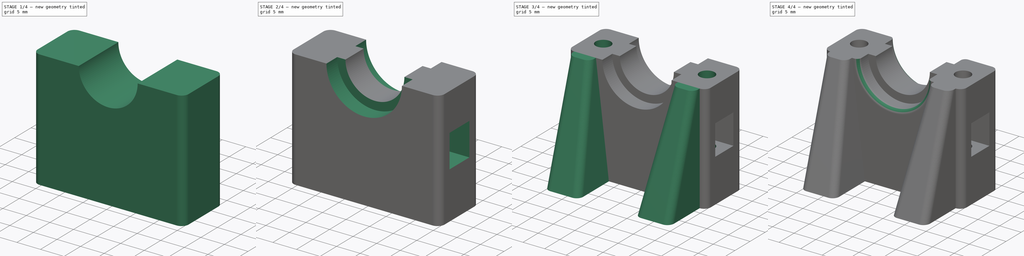
[diagram: build sequence overview — one tinted view per stage of 4, left to right]
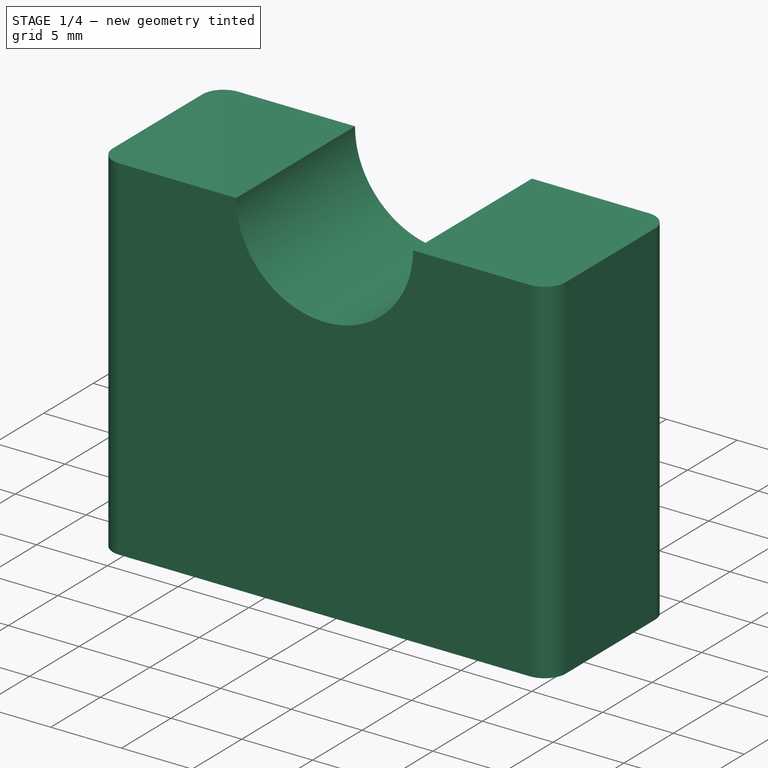
[diagram: stage 1 of 4 — iso view after this stage's code; geometry added in this stage tinted green]
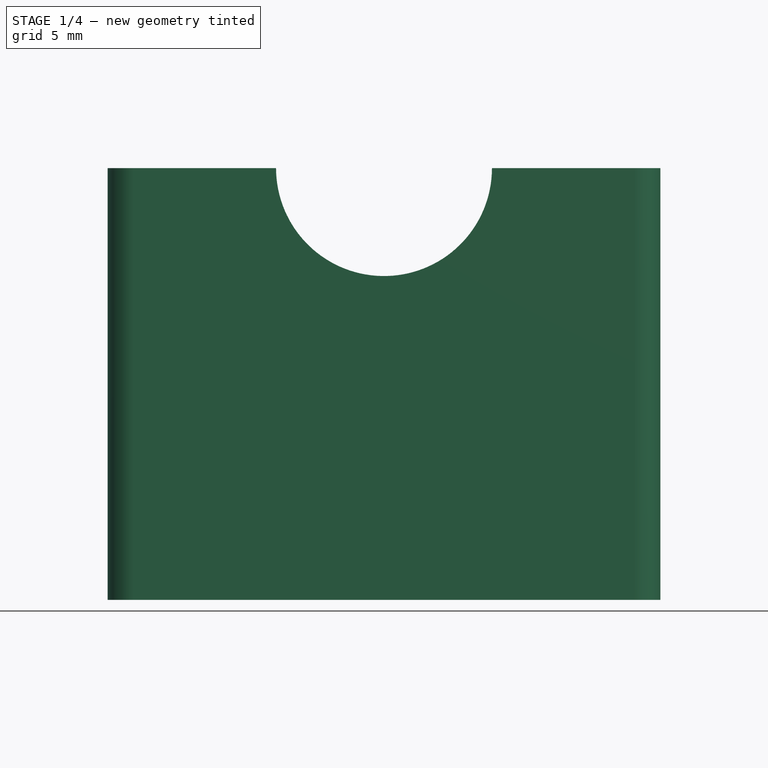
[diagram: stage 1 of 4 — front view after this stage's code; geometry added in this stage tinted green]
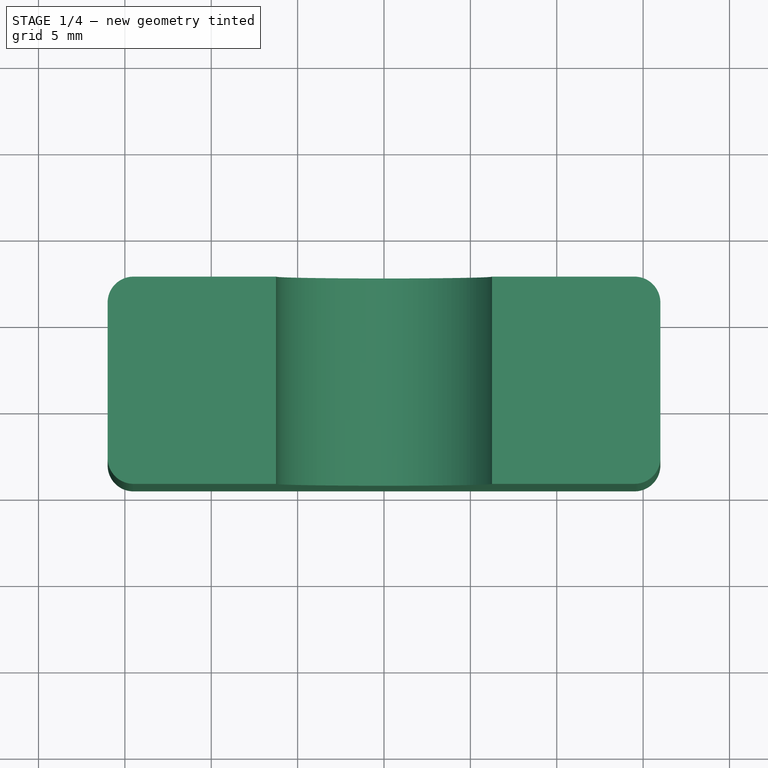
[diagram: stage 1 of 4 — top view after this stage's code; geometry added in this stage tinted green]
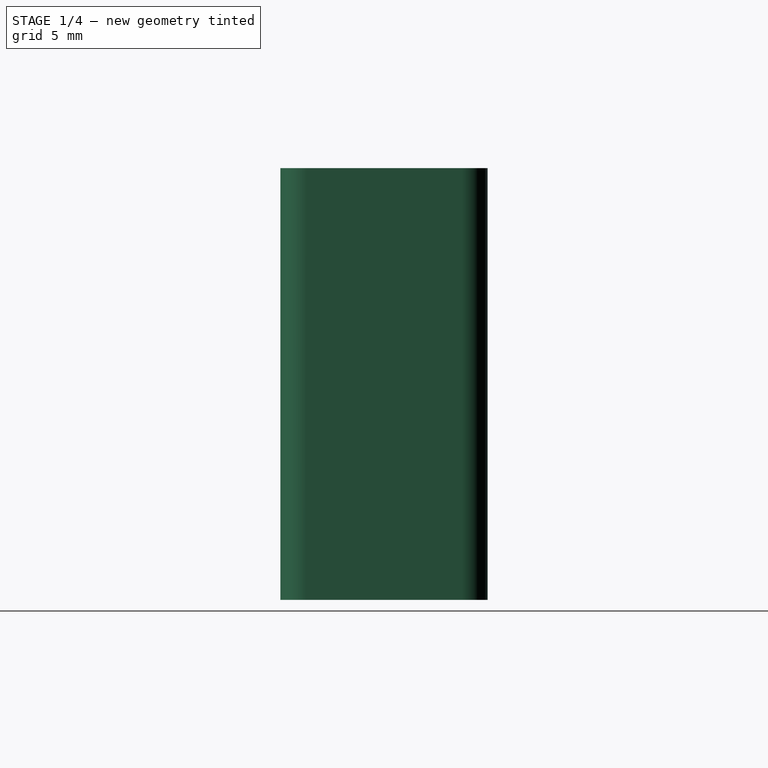
[diagram: stage 1 of 4 — right view after this stage's code; geometry added in this stage tinted green]
FCSTD DOCUMENT  (FreeCAD 0.19R)
Label: nozzle-carriage-v3.2
License: All rights reserved
LicenseURL: http://en.wikipedia.org/wiki/All_rights_reserved
objects: Sketcher::SketchObject×11, PartDesign::Pocket×7, PartDesign::Pad×2, PartDesign::Body×2, PartDesign::AdditiveLoft×2, PartDesign::Fillet×2, Spreadsheet::Sheet×1, PartDesign::ShapeBinder×1
note: 40 computed .brp shape members not serialized (recipe doc carries the construction recipe); baked Part::Feature solids carry a one-line shape summary decoded from their .brp

FEATURE [Spreadsheet::Sheet] Spreadsheet
  cells = A1=Base; A2=Base lenght; B2(Base_len)==65mm; A3=Base width; B3(Base_w)==55mm; A4=Base height; B4(Base_h)==3mm; A5=Puley wheel vslot distance; B5(Wheel_vslot_d)==20mm; A6=Puley wheel horizontal distance; B6(Wheel_h_d)==45mm; A7=Border radius; B7(Base_radius)==10mm; A8=Screw diameter; B8(Base_screw_d)==6.5mm; A9=Holder; A10=Height; B10(Holder_h)==25mm; A11=Width; B11(Holder_w)==12mm; A12=Lenght; B12(Holder_len)==32mm; A13=Holder inner diameter; B13(Holder_inner_d)==12.5mm; A14=Holder outer diameter; B14(Holder_outer_d)==16mm; A15=Screw h. distance; B15(Screw_h_d)==4mm; A16=Screw diameter; B16(Holder_screw_d)==3.5mm; A17=Screw lenght; B17(Holder_screw_len)==25mm; A18=Screw head diameter; B18(Holder_scree_head)==6mm; A19=Holder top distance; B19(Holder_top_d)==10mm; A20=Holder radius; B20(Holder_radius)==3mm; A21=Holder tickness; B21(Holder_tickness)==5.5mm; A22=Nut diameter; B22(Holder_nut_d)==6mm; A23=Nut tickness; B23(Holder_nut_tick)==2mm
FEATURE [Sketcher::SketchObject] Sketch
  MapMode = 5
  Support = -> [XY_Plane]
  expr: Constraints[18] = Spreadsheet.Base_w
  expr: Constraints[13] = Spreadsheet.Base_radius
  expr: Constraints[14] = Spreadsheet.Base_len
  expr: Constraints[24] = Spreadsheet.Base_screw_d
  expr: Constraints[28] = Spreadsheet.Wheel_vslot_d * 2
  expr: Constraints[30] = Spreadsheet.Wheel_h_d
  expr: Constraints[31] = Spreadsheet.Wheel_h_d / 2
  expr: Constraints[29] = Spreadsheet.Wheel_vslot_d
  sketch-geometry (12):
    g0: LineSegment StartX=-27.5 StartY=-27.5 StartZ=0 EndX=27.5 EndY=-27.5 EndZ=0
    g1: LineSegment StartX=32.5 StartY=-22.5 StartZ=0 EndX=32.5 EndY=22.5 EndZ=0
    g2: LineSegment StartX=27.5 StartY=27.5 StartZ=0 EndX=-27.5 EndY=27.5 EndZ=0
    g3: LineSegment StartX=-32.5 StartY=22.5 StartZ=0 EndX=-32.5 EndY=-22.5 EndZ=0
    g4: ArcOfCircle CenterX=-27.5 CenterY=22.5 CenterZ=0 NormalX=0 NormalY=0 NormalZ=1 AngleXU=0 Radius=5 StartAngle=1.5708 EndAngle=3.14159
    g5: ArcOfCircle CenterX=27.5 CenterY=-22.5 CenterZ=0 NormalX=0 NormalY=0 NormalZ=1 AngleXU=0 Radius=5 StartAngle=4.71239 EndAngle=6.28319
    g6: ArcOfCircle CenterX=27.5 CenterY=22.5 CenterZ=0 NormalX=0 NormalY=0 NormalZ=1 AngleXU=0 Radius=5 StartAngle=0 EndAngle=1.5708
    g7: ArcOfCircle CenterX=-27.5 CenterY=-22.5 CenterZ=0 NormalX=0 NormalY=0 NormalZ=1 AngleXU=0 Radius=5 StartAngle=3.14159 EndAngle=4.71239
    g8: Circle CenterX=-22.5 CenterY=20 CenterZ=0 NormalX=0 NormalY=0 NormalZ=1 AngleXU=0 Radius=3.25
    g9: Circle CenterX=22.5 CenterY=20 CenterZ=0 NormalX=0 NormalY=0 NormalZ=1 AngleXU=0 Radius=3.25
    g10: LineSegment [constr] StartX=-32.5 StartY=20 StartZ=0 EndX=32.5 EndY=20 EndZ=0
    g11: Circle CenterX=0 CenterY=-20 CenterZ=0 NormalX=0 NormalY=0 NormalZ=1 AngleXU=0 Radius=3.25
  constraints (32):
    c: Horizontal(g0)
    c: Horizontal(g2)
    c: Vertical(g1)
    c: Vertical(g3)
    c: Tangent(g2,g4) = -1.5708
    c: Tangent(g3,g4) = -1.5708
    c: Tangent(g0,g5) = -1.5708
    c: Tangent(g1,g5) = -1.5708
    c: Tangent(g1,g6) = -1.5708
    c: Tangent(g2,g6) = -1.5708
    c: Tangent(g0,g7) = -1.5708
    c: Tangent(g3,g7) = -1.5708
    c: Symmetric(g4,g5,g-1)
    c: Diameter(g4) = 10
    c: DistanceX(g3,g1) = 65
    c: Equal(g4,g7)
    c: Equal(g7,g5)
    c: Equal(g5,g6)
    c: DistanceY(g0,g2) = 55
    c: PointOnObject(g10,g1)
    c: Horizontal(g10)
    c: PointOnObject(g10,g3)
    c: PointOnObject(g8,g10)
    c: PointOnObject(g9,g10)
    c: Diameter(g8) = 6.5
    c: Equal(g8,g9)
    c: PointOnObject(g11,g-2)
    c: Equal(g8,g11)
    c: DistanceY(g11,g10) = 40
    c: DistanceY(g11,g-1) = 20
    c: DistanceX(g8,g9) = 45
    c: DistanceX(g8,g-1) = 22.5
FEATURE [PartDesign::Pad] Pad
  AllowMultiFace = false
  Direction = (1,1,1)
  Length = 3
  Length2 = 100
  Profile = -> Sketch
  Type = 0
  expr: Length = Spreadsheet.Base_h
FEATURE [PartDesign::Body] Body  label="Base"
  Group = -> [Sketch,Pad]
  Origin = -> Origin
  Tip = -> Pad
FEATURE [PartDesign::ShapeBinder] ShapeBinder
  Placement = pos=(0,0,3) rot=(0,0,1;0rad)
  Support = -> [Pad]
  TraceSupport = false
FEATURE [Sketcher::SketchObject] Sketch001
  ExternalGeometry = -> [ShapeBinder]
  MapMode = 5
  Placement = pos=(0,0,3) rot=(0,0,1;0rad)
  Support = -> [ShapeBinder]
  expr: Constraints[12] = Spreadsheet.Holder_radius
  expr: Constraints[16] = Spreadsheet.Holder_len
  expr: Constraints[17] = Spreadsheet.Holder_len / 2
  expr: Constraints[18] = Spreadsheet.Holder_top_d
  expr: Constraints[19] = Spreadsheet.Holder_w
  sketch-geometry (8):
    g0: LineSegment StartX=-14.5 StartY=17.5 StartZ=0 EndX=14.5 EndY=17.5 EndZ=0
    g1: LineSegment StartX=16 StartY=16 StartZ=0 EndX=16 EndY=7 EndZ=0
    g2: LineSegment StartX=14.5 StartY=5.5 StartZ=0 EndX=-14.5 EndY=5.5 EndZ=0
    g3: LineSegment StartX=-16 StartY=7 StartZ=0 EndX=-16 EndY=16 EndZ=0
    g4: ArcOfCircle CenterX=-14.5 CenterY=16 CenterZ=0 NormalX=0 NormalY=0 NormalZ=1 AngleXU=0 Radius=1.5 StartAngle=1.5708 EndAngle=3.14159
    g5: ArcOfCircle CenterX=-14.5 CenterY=7 CenterZ=0 NormalX=0 NormalY=0 NormalZ=1 AngleXU=0 Radius=1.5 StartAngle=3.14159 EndAngle=4.71239
    g6: ArcOfCircle CenterX=14.5 CenterY=16 CenterZ=0 NormalX=0 NormalY=0 NormalZ=1 AngleXU=0 Radius=1.5 StartAngle=6.4047e-12 EndAngle=1.5708
    g7: ArcOfCircle CenterX=14.5 CenterY=7 CenterZ=0 NormalX=0 NormalY=0 NormalZ=1 AngleXU=0 Radius=1.5 StartAngle=4.71239 EndAngle=6.28319
  constraints (20):
    c: Horizontal(g0)
    c: Horizontal(g2)
    c: Vertical(g1)
    c: Vertical(g3)
    c: Tangent(g0,g4) = 1.5708
    c: Tangent(g3,g4) = 1.5708
    c: Tangent(g2,g5) = 1.5708
    c: Tangent(g3,g5) = 1.5708
    c: Tangent(g0,g6) = 1.5708
    c: Tangent(g1,g6) = 1.5708
    c: Tangent(g1,g7) = 1.5708
    c: Tangent(g2,g7) = 1.5708
    c: Diameter(g4) = 3
    c: Equal(g4,g6)
    c: Equal(g6,g7)
    c: Equal(g7,g5)
    c: DistanceX(g3,g1) = 32
    c: DistanceX(g3,g-1) = 16
    c: DistanceY(g0,g-6) = 10
    c: DistanceY(g2,g0) = 12
FEATURE [PartDesign::Pad] Pad001
  AllowMultiFace = false
  Direction = (1,1,1)
  Length = 25
  Length2 = 100
  Placement = pos=(0,0,3) rot=(0,0,1;0rad)
  Profile = -> Sketch001
  Type = 0
  expr: Length = Spreadsheet.Holder_h
FEATURE [Sketcher::SketchObject] Sketch002
  ExternalGeometry = -> [Pad001]
  MapMode = 5
  Placement = pos=(0,5.5,3) rot=(1,0,0;1.5708rad)
  Support = -> [Pad001]
  expr: Constraints[2] = Spreadsheet.Holder_inner_d
  sketch-geometry (1):
    g0: Circle CenterX=0 CenterY=25 CenterZ=0 NormalX=0 NormalY=0 NormalZ=1 AngleXU=0 Radius=6.25
  constraints (3):
    c: PointOnObject(g0,g-3)
    c: PointOnObject(g0,g-2)
    c: Diameter(g0) = 12.5
FEATURE [Sketcher::SketchObject] Sketch003
  ExternalGeometry = -> [Pad001]
  MapMode = 5
  Placement = pos=(0,5.5,3) rot=(1,0,0;1.5708rad)
  Support = -> [Pad001]
  expr: Constraints[2] = Spreadsheet.Holder_outer_d
  sketch-geometry (1):
    g0: Circle CenterX=0 CenterY=25 CenterZ=0 NormalX=0 NormalY=0 NormalZ=1 AngleXU=0 Radius=8
  constraints (3):
    c: PointOnObject(g0,g-3)
    c: PointOnObject(g0,g-2)
    c: Diameter(g0) = 16
FEATURE [Sketcher::SketchObject] Sketch004
  ExternalGeometry = -> [Pad001]
  MapMode = 5
  Placement = pos=(0,17.5,3) rot=(0,0.707107,0.707107;3.14159rad)
  Support = -> [Pad001]
  expr: Constraints[2] = Spreadsheet.Holder_outer_d
  sketch-geometry (1):
    g0: Circle CenterX=0 CenterY=25 CenterZ=0 NormalX=0 NormalY=0 NormalZ=1 AngleXU=0 Radius=8
  constraints (3):
    c: PointOnObject(g0,g-3)
    c: PointOnObject(g0,g-2)
    c: Diameter(g0) = 16
FEATURE [PartDesign::Pocket] Pocket  label="Inner_1"
  AllowMultiFace = false
  BaseFeature = -> Pad001
  Length = 13
  Length2 = 100
  Placement = pos=(0,0,3) rot=(0,0,1;0rad)
  Profile = -> Sketch002
  Type = 0
  expr: Length = Spreadsheet.Holder_w + 1mm
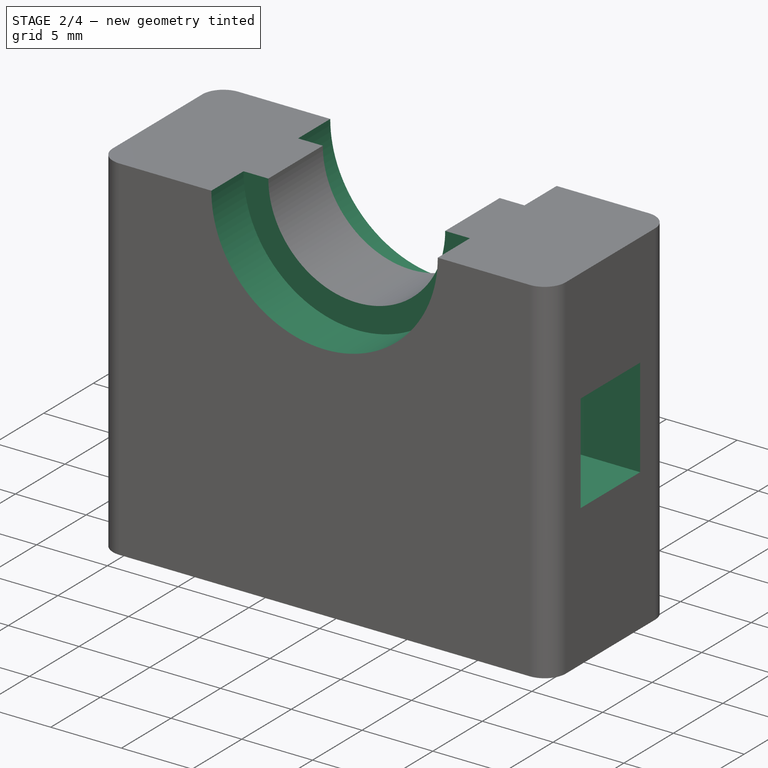
[diagram: stage 2 of 4 — iso view after this stage's code; geometry added in this stage tinted green]
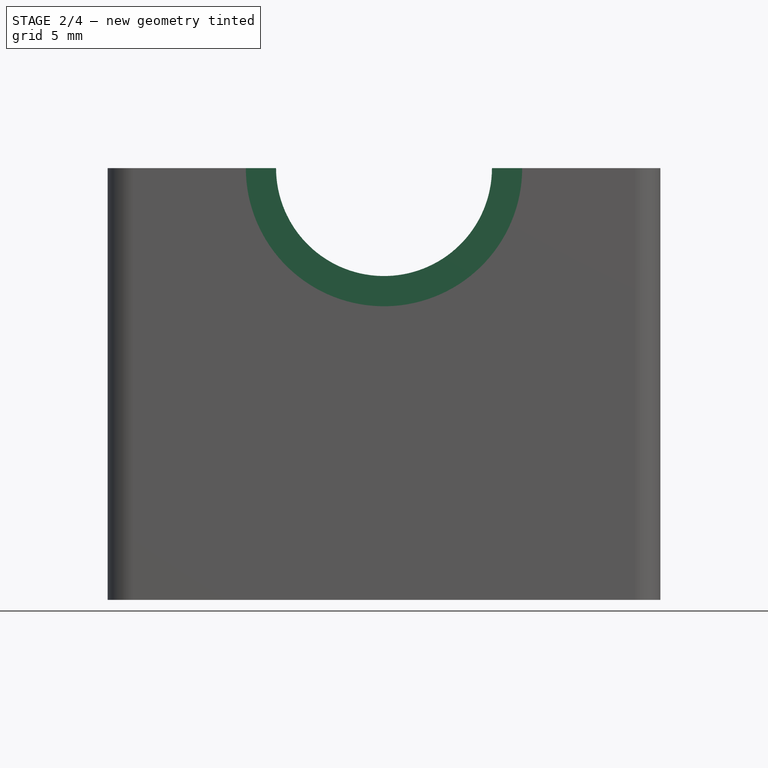
[diagram: stage 2 of 4 — front view after this stage's code; geometry added in this stage tinted green]
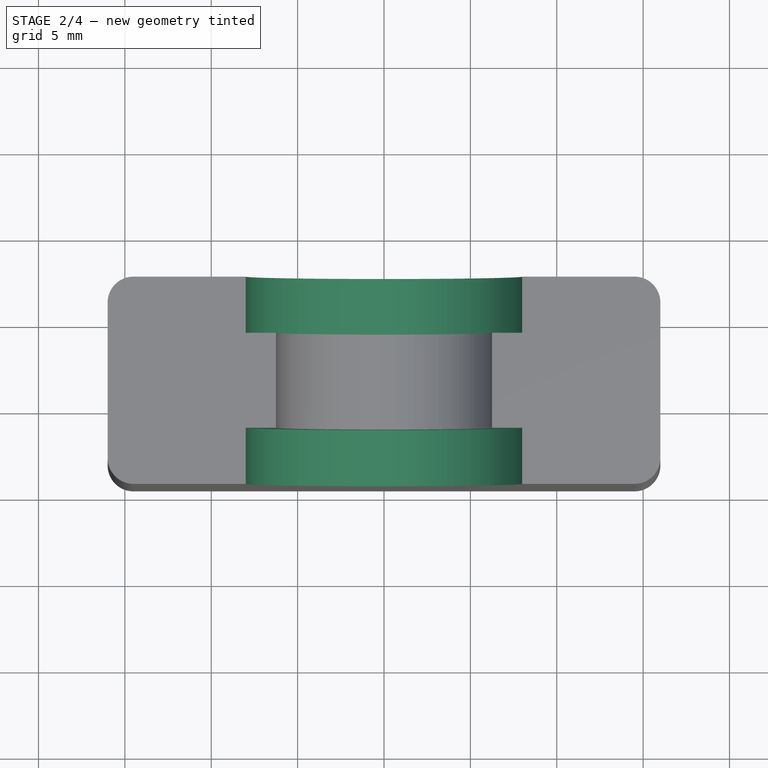
[diagram: stage 2 of 4 — top view after this stage's code; geometry added in this stage tinted green]
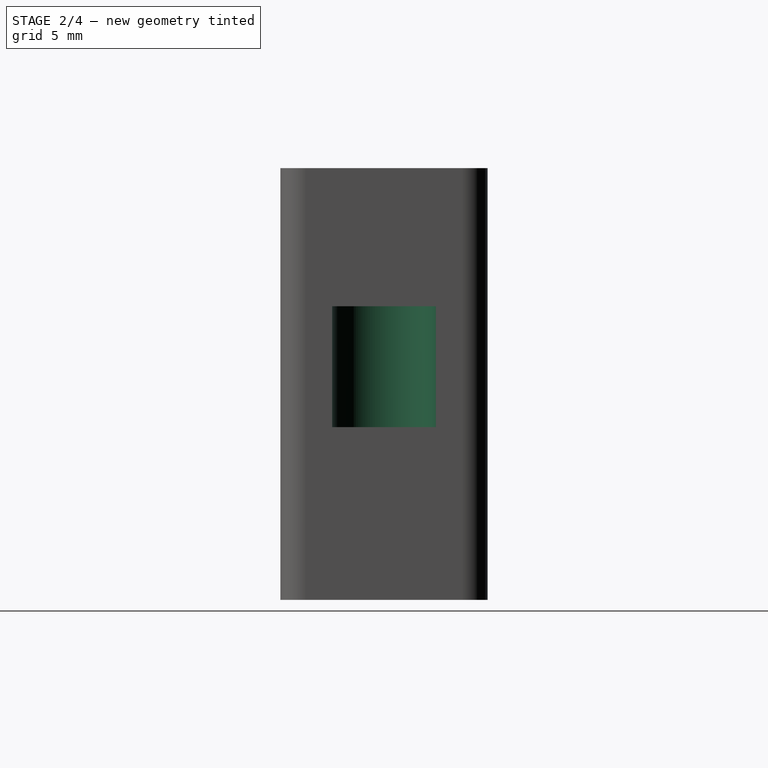
[diagram: stage 2 of 4 — right view after this stage's code; geometry added in this stage tinted green]
FEATURE [PartDesign::Pocket] Pocket001  label="Outer_1"
  AllowMultiFace = false
  BaseFeature = -> Pocket
  Length = 3.25
  Length2 = 100
  Placement = pos=(0,0,3) rot=(0,0,1;0rad)
  Profile = -> Sketch003
  Type = 0
  expr: Length = (Spreadsheet.Holder_w - Spreadsheet.Holder_tickness) / 2
FEATURE [PartDesign::Pocket] Pocket002  label="Outer_2"
  AllowMultiFace = false
  BaseFeature = -> Pocket001
  Length = 3.25
  Length2 = 100
  Placement = pos=(0,0,3) rot=(0,0,1;0rad)
  Profile = -> Sketch004
  Type = 0
  expr: Length = (Spreadsheet.Holder_w - Spreadsheet.Holder_tickness) / 2
FEATURE [Sketcher::SketchObject] Sketch005
  ExternalGeometry = -> [Pocket002]
  MapMode = 5
  Placement = pos=(0,0,28) rot=(0,0,1;0rad)
  Support = -> [Pocket002]
  expr: Constraints[5] = Spreadsheet.Holder_screw_d
  expr: Constraints[7] = Spreadsheet.Holder_w / 2
  expr: Constraints[8] = Spreadsheet.Holder_len / 8
  expr: Constraints[9] = Spreadsheet.Holder_len / 8
  sketch-geometry (3):
    g0: Circle CenterX=-12 CenterY=11.5 CenterZ=0 NormalX=0 NormalY=0 NormalZ=1 AngleXU=0 Radius=1.75
    g1: Circle CenterX=12 CenterY=11.5 CenterZ=0 NormalX=0 NormalY=0 NormalZ=1 AngleXU=0 Radius=1.75
    g2: LineSegment [constr] StartX=-16 StartY=11.5 StartZ=0 EndX=16 EndY=11.5 EndZ=0
  constraints (10):
    c: PointOnObject(g2,g-4)
    c: PointOnObject(g2,g-6)
    c: Horizontal(g2)
    c: PointOnObject(g0,g2)
    c: PointOnObject(g1,g2)
    c: Diameter(g0) = 3.5
    c: Equal(g0,g1)
    c: DistanceY(g0,g-3) = 6
    c: DistanceX(g2,g0) = 4
    c: DistanceX(g1,g2) = 4
FEATURE [Sketcher::SketchObject] Sketch006
  AttachmentOffset = pos=(0,0,-8) rot=(0,0,1;0rad)
  ExternalGeometry = -> [Sketch005]
  MapMode = 5
  Placement = pos=(0,0,20) rot=(0,0,1;0rad)
  Support = -> [Pocket002]
  expr: Constraints[2] = Spreadsheet.Holder_nut_d
  expr: Constraints[15] = Spreadsheet.Holder_nut_d
  expr: Constraints[20] = Spreadsheet.Holder_w
  expr: Constraints[16] = Spreadsheet.Holder_nut_d
  expr: .AttachmentOffset.Base.z = -(Spreadsheet.Holder_outer_d / 2)
  sketch-geometry (8):
    g0: ArcOfCircle CenterX=-12 CenterY=11.5 CenterZ=0 NormalX=0 NormalY=0 NormalZ=1 AngleXU=0 Radius=3 StartAngle=4.71239 EndAngle=7.85398
    g1: ArcOfCircle CenterX=12 CenterY=11.5 CenterZ=0 NormalX=0 NormalY=0 NormalZ=1 AngleXU=0 Radius=3 StartAngle=1.5708 EndAngle=4.71239
    g2: LineSegment StartX=-12 StartY=14.5 StartZ=0 EndX=-24 EndY=14.5 EndZ=0
    g3: LineSegment StartX=-12 StartY=8.5 StartZ=0 EndX=-24 EndY=8.5 EndZ=0
    g4: LineSegment StartX=12 StartY=8.5 StartZ=0 EndX=24 EndY=8.5 EndZ=0
    g5: LineSegment StartX=12 StartY=14.5 StartZ=0 EndX=24 EndY=14.5 EndZ=0
    g6: LineSegment StartX=24 StartY=14.5 StartZ=0 EndX=24 EndY=8.5 EndZ=0
    g7: LineSegment StartX=-24 StartY=14.5 StartZ=0 EndX=-24 EndY=8.5 EndZ=0
  constraints (23):
    c: Coincident(g0,g-3)
    c: Coincident(g1,g-4)
    c: Diameter(g0) = 6
    c: Equal(g0,g1)
    c: Horizontal(g2)
    c: Horizontal(g3)
    c: Horizontal(g4)
    c: Horizontal(g5)
    c: Tangent(g5,g1)
    c: Coincident(g6,g5)
    c: Vertical(g6)
    c: Vertical(g7)
    c: Coincident(g3,g7)
    c: Coincident(g2,g7)
    c: Coincident(g6,g4)
    c: DistanceY(g6,g6) = 6
    c: DistanceY(g7,g7) = 6
    c: Equal(g2,g5)
    c: Coincident(g0,g3)
    c: Coincident(g0,g2)
    c: DistanceX(g2,g2) = 12
    c: Coincident(g1,g5)
    c: Coincident(g1,g4)
FEATURE [PartDesign::Pocket] Pocket003
  AllowMultiFace = false
  BaseFeature = -> Pocket002
  Length = 7
  Length2 = 100
  Placement = pos=(0,0,3) rot=(0,0,1;0rad)
  Profile = -> Sketch006
  Type = 0
  expr: Length = Spreadsheet.Holder_nut_tick + 5mm
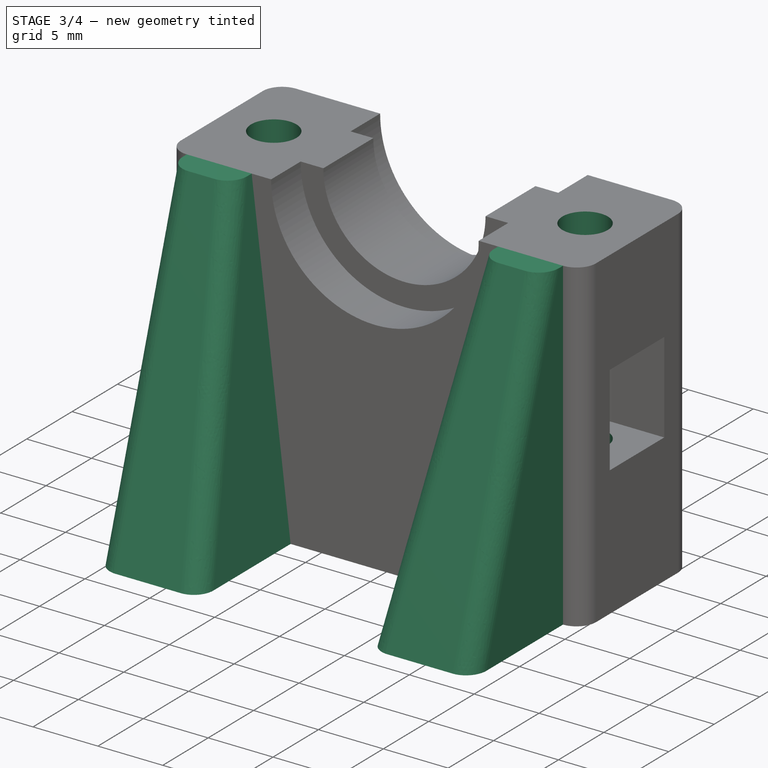
[diagram: stage 3 of 4 — iso view after this stage's code; geometry added in this stage tinted green]
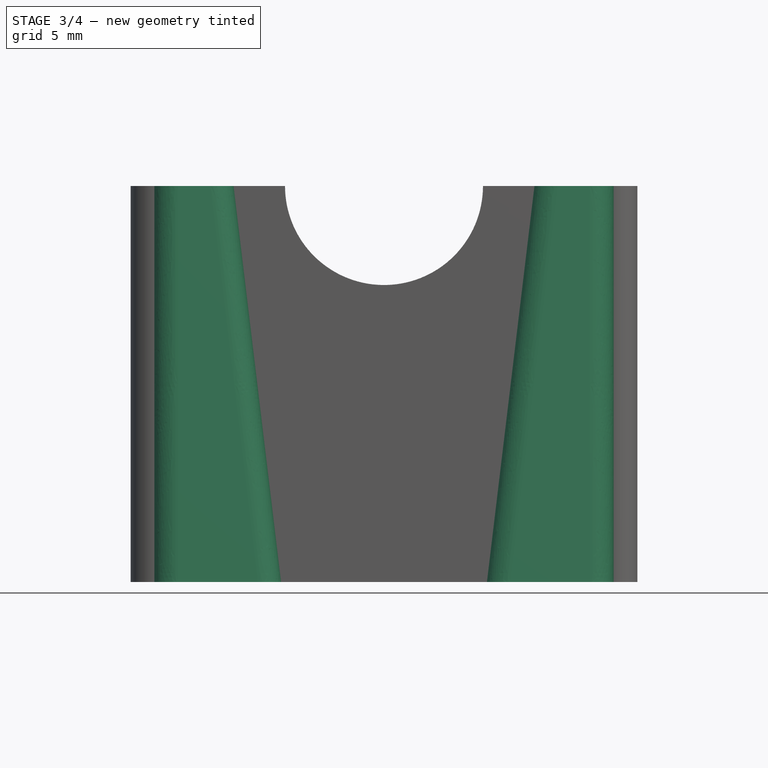
[diagram: stage 3 of 4 — front view after this stage's code; geometry added in this stage tinted green]
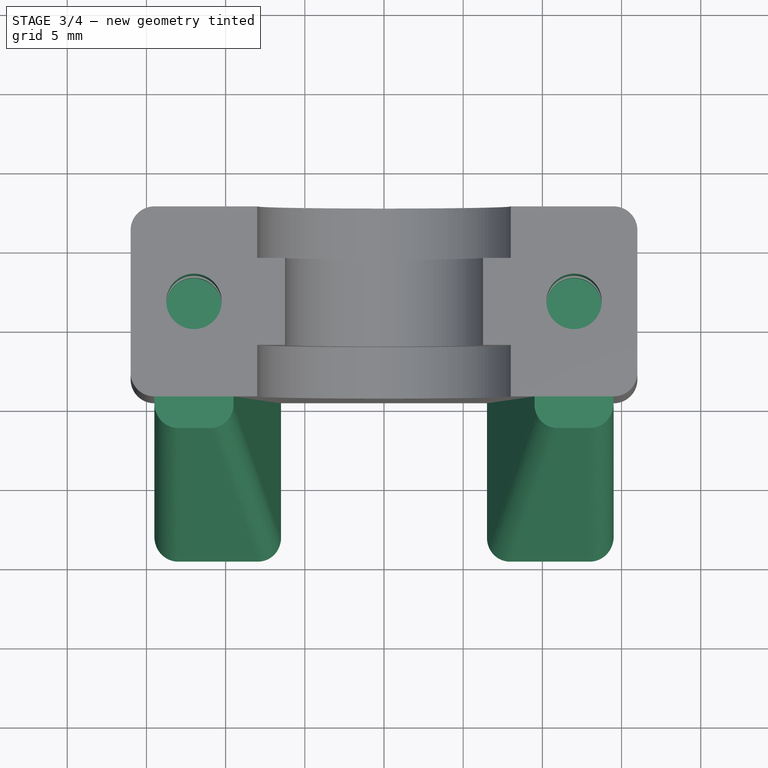
[diagram: stage 3 of 4 — top view after this stage's code; geometry added in this stage tinted green]
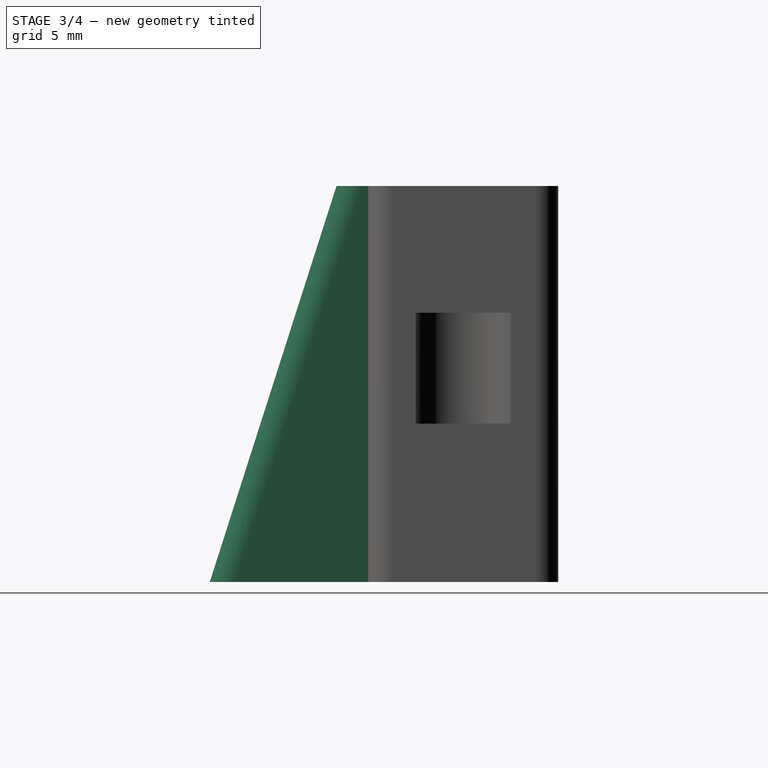
[diagram: stage 3 of 4 — right view after this stage's code; geometry added in this stage tinted green]
FEATURE [PartDesign::Pocket] Pocket004
  AllowMultiFace = false
  BaseFeature = -> Pocket003
  Length = 17
  Length2 = 100
  Placement = pos=(0,0,3) rot=(0,0,1;0rad)
  Profile = -> Sketch005
  Type = 0
  expr: Length = Spreadsheet.Holder_screw_len - Spreadsheet.Holder_outer_d / 2
FEATURE [Sketcher::SketchObject] Sketch007
  ExternalGeometry = -> [Pocket004]
  MapMode = 5
  Placement = pos=(0,0,3) rot=(0,0,1;0rad)
  Support = -> [ShapeBinder]
  sketch-geometry (4):
    g0: LineSegment StartX=-14.5 StartY=5.5 StartZ=0 EndX=-6.5 EndY=5.5 EndZ=0
    g1: LineSegment StartX=-6.5 StartY=5.5 StartZ=0 EndX=-6.5 EndY=-4.5 EndZ=0
    g2: LineSegment StartX=-6.5 StartY=-4.5 StartZ=0 EndX=-14.5 EndY=-4.5 EndZ=0
    g3: LineSegment StartX=-14.5 StartY=-4.5 StartZ=0 EndX=-14.5 EndY=5.5 EndZ=0
  constraints (11):
    c: Coincident(g0,g1)
    c: Coincident(g1,g2)
    c: Coincident(g2,g3)
    c: Coincident(g3,g0)
    c: Horizontal(g0)
    c: Horizontal(g2)
    c: Vertical(g1)
    c: Vertical(g3)
    c: Coincident(g0,g-3)
    c: DistanceX(g2,g2) = 8
    c: DistanceY(g1,g1) = 10
FEATURE [Sketcher::SketchObject] Sketch008
  ExternalGeometry = -> [Pocket004]
  MapMode = 5
  Placement = pos=(0,0,28) rot=(0,0,1;0rad)
  Support = -> [Pocket004]
  expr: Constraints[9] = (Spreadsheet.Holder_len - Spreadsheet.Holder_outer_d - 2 * Spreadsheet.Holder_radius) / 2
  sketch-geometry (4):
    g0: LineSegment StartX=-14.5 StartY=5.5 StartZ=0 EndX=-9.5 EndY=5.5 EndZ=0
    g1: LineSegment StartX=-9.5 StartY=5.5 StartZ=0 EndX=-9.5 EndY=3.5 EndZ=0
    g2: LineSegment StartX=-9.5 StartY=3.5 StartZ=0 EndX=-14.5 EndY=3.5 EndZ=0
    g3: LineSegment StartX=-14.5 StartY=3.5 StartZ=0 EndX=-14.5 EndY=5.5 EndZ=0
  constraints (11):
    c: Coincident(g0,g1)
    c: Coincident(g1,g2)
    c: Coincident(g2,g3)
    c: Coincident(g3,g0)
    c: Horizontal(g0)
    c: Horizontal(g2)
    c: Vertical(g1)
    c: Vertical(g3)
    c: Coincident(g0,g-3)
    c: DistanceX(g2,g2) = 5
    c: DistanceY(g3,g3) = 2
FEATURE [PartDesign::AdditiveLoft] AdditiveLoft
  AllowMultiFace = false
  BaseFeature = -> Pocket004
  Closed = false
  Placement = pos=(0,0,3) rot=(0,0,1;0rad)
  Profile = -> Sketch007
  Ruled = false
  Sections = -> [Sketch008]
FEATURE [Sketcher::SketchObject] Sketch009
  ExternalGeometry = -> [AdditiveLoft]
  MapMode = 5
  Placement = pos=(0,0,3) rot=(0,0,1;0rad)
  Support = -> [ShapeBinder]
  sketch-geometry (4):
    g0: LineSegment StartX=14.5 StartY=5.5 StartZ=0 EndX=6.5 EndY=5.5 EndZ=0
    g1: LineSegment StartX=6.5 StartY=5.5 StartZ=0 EndX=6.5 EndY=-4.5 EndZ=0
    g2: LineSegment StartX=6.5 StartY=-4.5 StartZ=0 EndX=14.5 EndY=-4.5 EndZ=0
    g3: LineSegment StartX=14.5 StartY=-4.5 StartZ=0 EndX=14.5 EndY=5.5 EndZ=0
  constraints (11):
    c: Coincident(g0,g1)
    c: Coincident(g1,g2)
    c: Coincident(g2,g3)
    c: Coincident(g3,g0)
    c: Horizontal(g0)
    c: Horizontal(g2)
    c: Vertical(g1)
    c: Vertical(g3)
    c: Coincident(g0,g-3)
    c: DistanceX(g2,g2) = 8
    c: DistanceY(g1,g1) = 10
FEATURE [Sketcher::SketchObject] Sketch010
  ExternalGeometry = -> [AdditiveLoft]
  MapMode = 5
  Placement = pos=(0,0,28) rot=(0,0,1;0rad)
  Support = -> [AdditiveLoft]
  expr: Constraints[8] = (Spreadsheet.Holder_len - Spreadsheet.Holder_outer_d - 2 * Spreadsheet.Holder_radius) / 2
  sketch-geometry (4):
    g0: LineSegment StartX=14.5 StartY=5.5 StartZ=0 EndX=9.5 EndY=5.5 EndZ=0
    g1: LineSegment StartX=9.5 StartY=5.5 StartZ=0 EndX=9.5 EndY=3.5 EndZ=0
    g2: LineSegment StartX=9.5 StartY=3.5 StartZ=0 EndX=14.5 EndY=3.5 EndZ=0
    g3: LineSegment StartX=14.5 StartY=3.5 StartZ=0 EndX=14.5 EndY=5.5 EndZ=0
  constraints (10):
    c: Coincident(g0,g1)
    c: Coincident(g1,g2)
    c: Coincident(g2,g3)
    c: Coincident(g3,g0)
    c: Horizontal(g0)
    c: Horizontal(g2)
    c: Vertical(g1)
    c: Vertical(g3)
    c: DistanceX(g2,g2) = 5
    c: DistanceY(g1,g1) = 2
FEATURE [PartDesign::AdditiveLoft] AdditiveLoft001
  AllowMultiFace = false
  BaseFeature = -> AdditiveLoft
  Closed = false
  Placement = pos=(0,0,3) rot=(0,0,1;0rad)
  Profile = -> Sketch009
  Ruled = false
  Sections = -> [Sketch010]
FEATURE [PartDesign::Fillet] Fillet
  Base = -> AdditiveLoft001 [Edge80,Edge43,Edge95,Edge94]
  BaseFeature = -> AdditiveLoft001
  Placement = pos=(0,0,3) rot=(0,0,1;0rad)
  Radius = 1.5
  SupportTransform = false
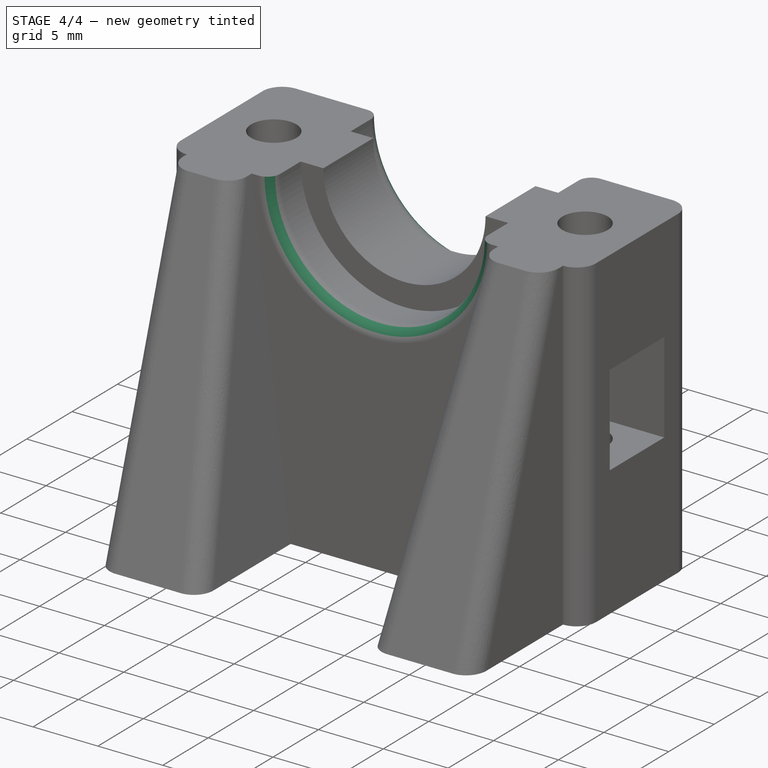
[diagram: stage 4 of 4 — iso view after this stage's code; geometry added in this stage tinted green]
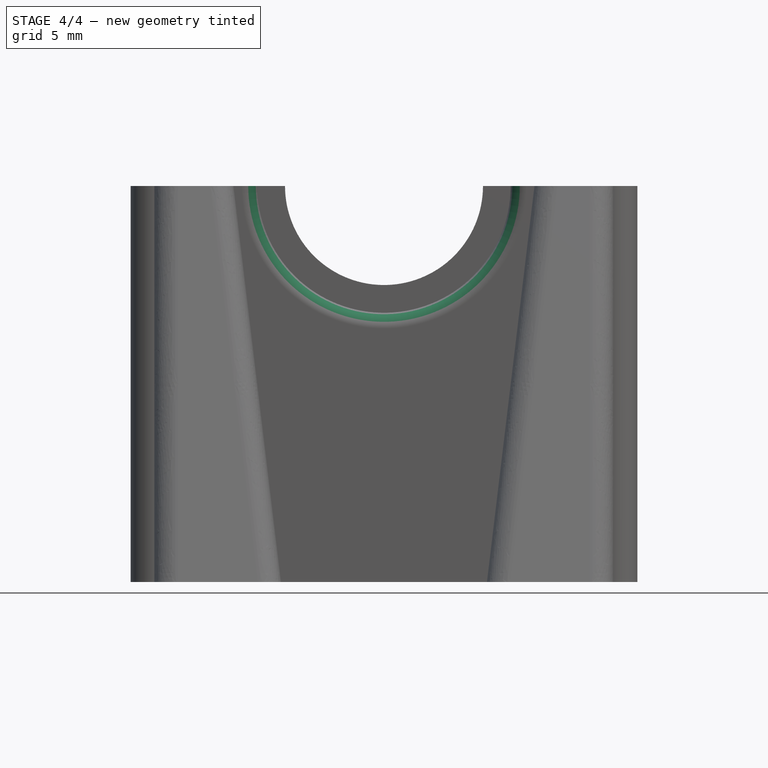
[diagram: stage 4 of 4 — front view after this stage's code; geometry added in this stage tinted green]
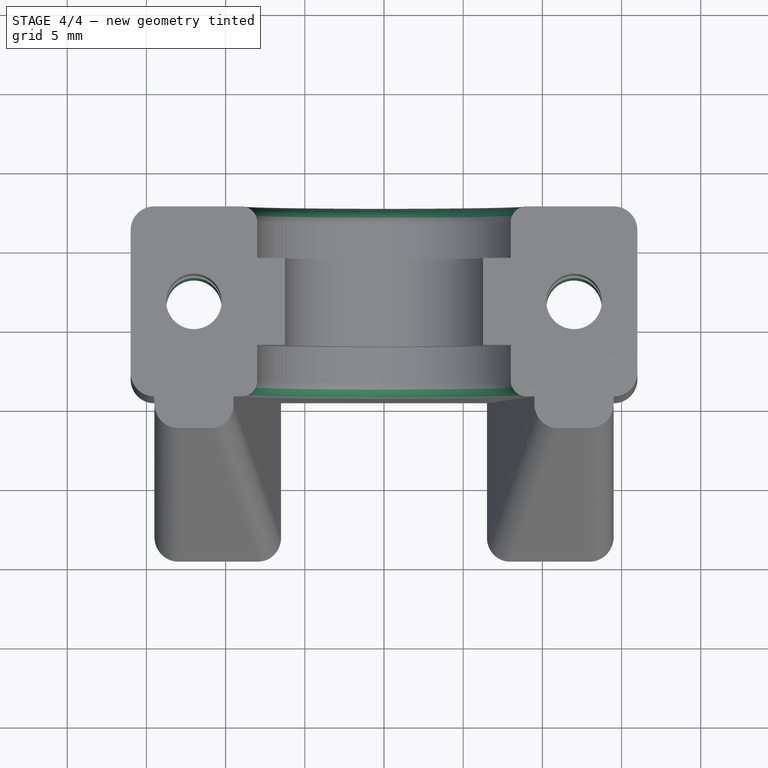
[diagram: stage 4 of 4 — top view after this stage's code; geometry added in this stage tinted green]
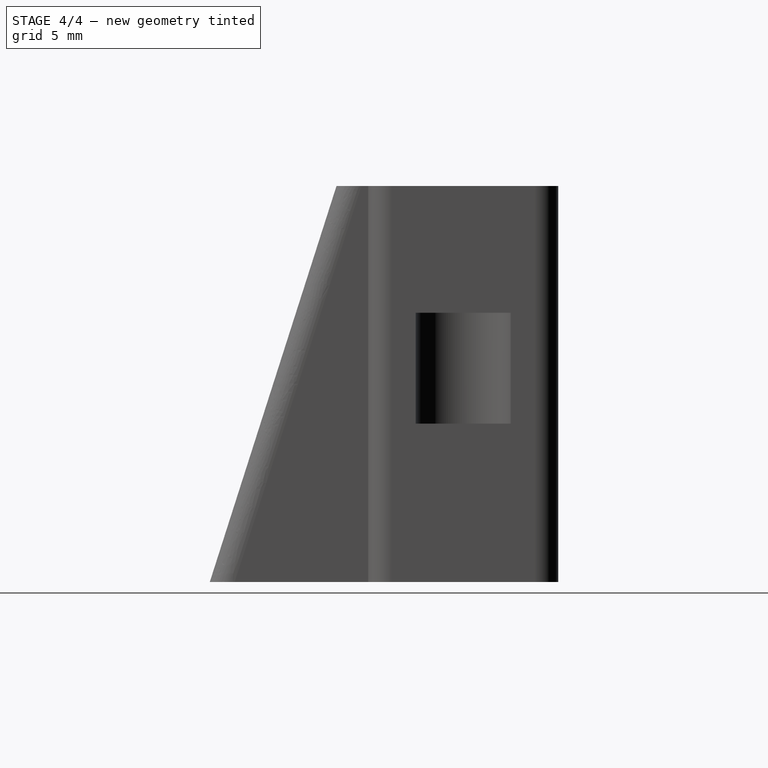
[diagram: stage 4 of 4 — right view after this stage's code; geometry added in this stage tinted green]
FEATURE [PartDesign::Fillet] Fillet001
  Base = -> Fillet [Edge45,Edge51]
  BaseFeature = -> Fillet
  Placement = pos=(0,0,3) rot=(0,0,1;0rad)
  Radius = 1
  SupportTransform = false
FEATURE [PartDesign::Pocket] Pocket005
  BaseFeature = -> Fillet001
  Length = 10
  Length2 = 100
  Placement = pos=(0,0,3) rot=(0,0,1;0rad)
  Profile = -> Fillet001 [Face48]
  Type = 0
FEATURE [PartDesign::Pocket] Pocket006
  BaseFeature = -> Pocket005
  Length = 10
  Length2 = 100
  Placement = pos=(0,0,3) rot=(0,0,1;0rad)
  Profile = -> Pocket005 [Face47]
  Type = 0
FEATURE [PartDesign::Body] Body001  label="Holder"
  Group = -> [ShapeBinder,Sketch001,Pad001,Sketch002,Sketch003,Sketch004,Pocket,Pocket001,Pocket002,Sketch005,Sketch006,Pocket003,Pocket004,Sketch007,Sketch008,AdditiveLoft,Sketch009,Sketch010,AdditiveLoft001,Fillet,Fillet001,Pocket005,Pocket006]
  Origin = -> Origin001
  Tip = -> Pocket006
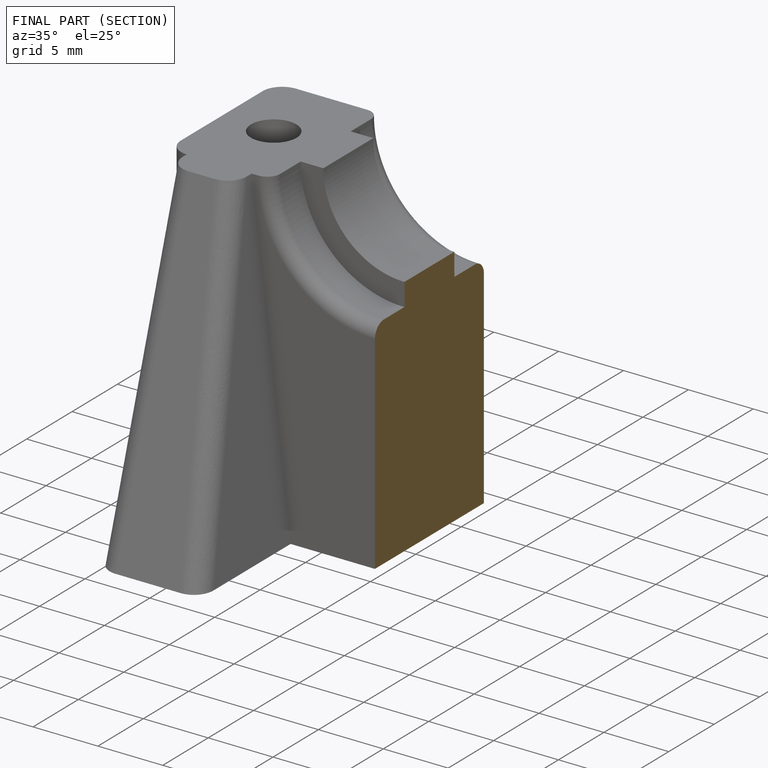
[diagram: finished part — half-section view (interior)]
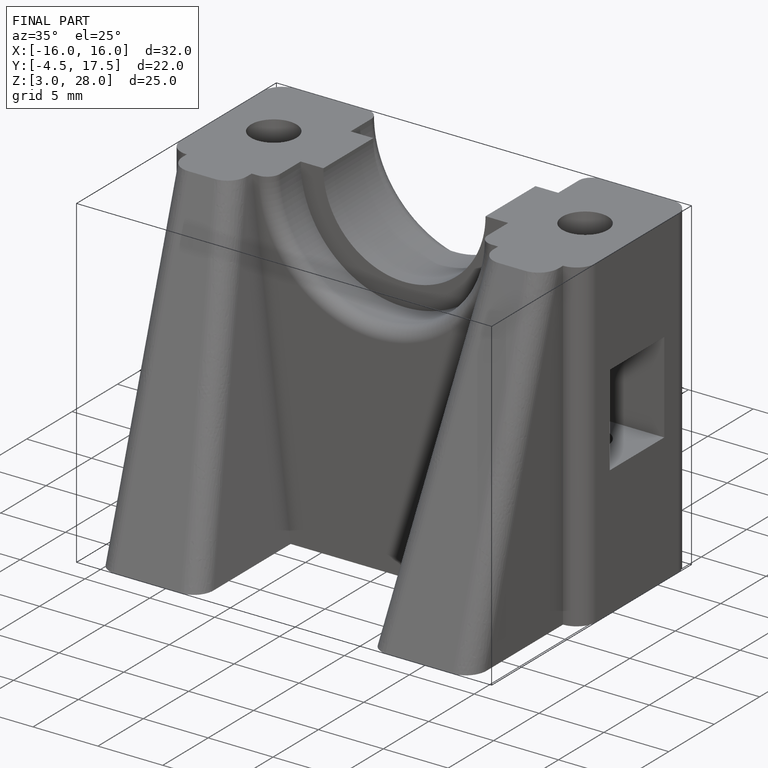
[diagram: finished part — iso view with bounding-box wireframe]
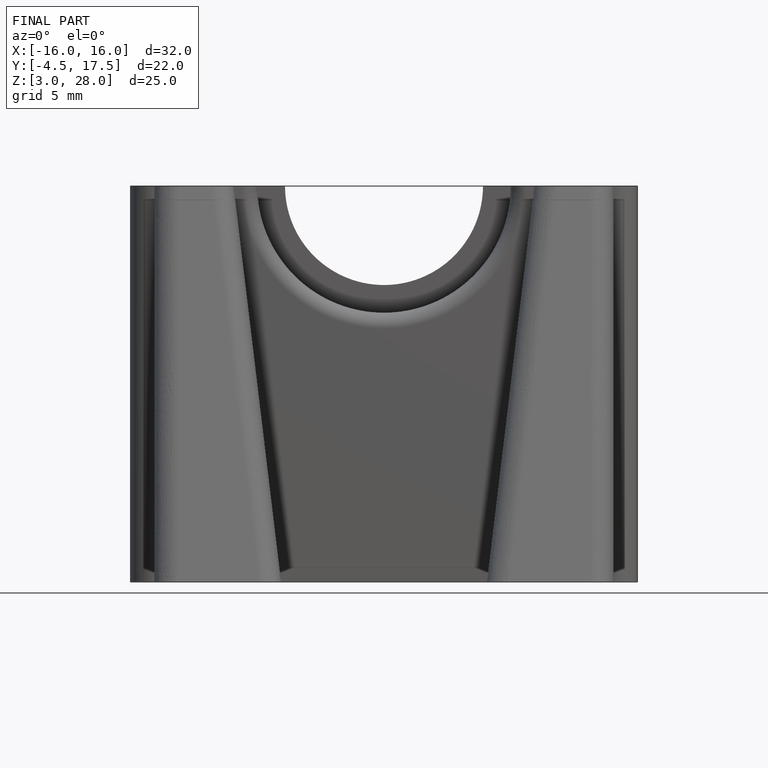
[diagram: finished part — front view with bounding-box wireframe]
